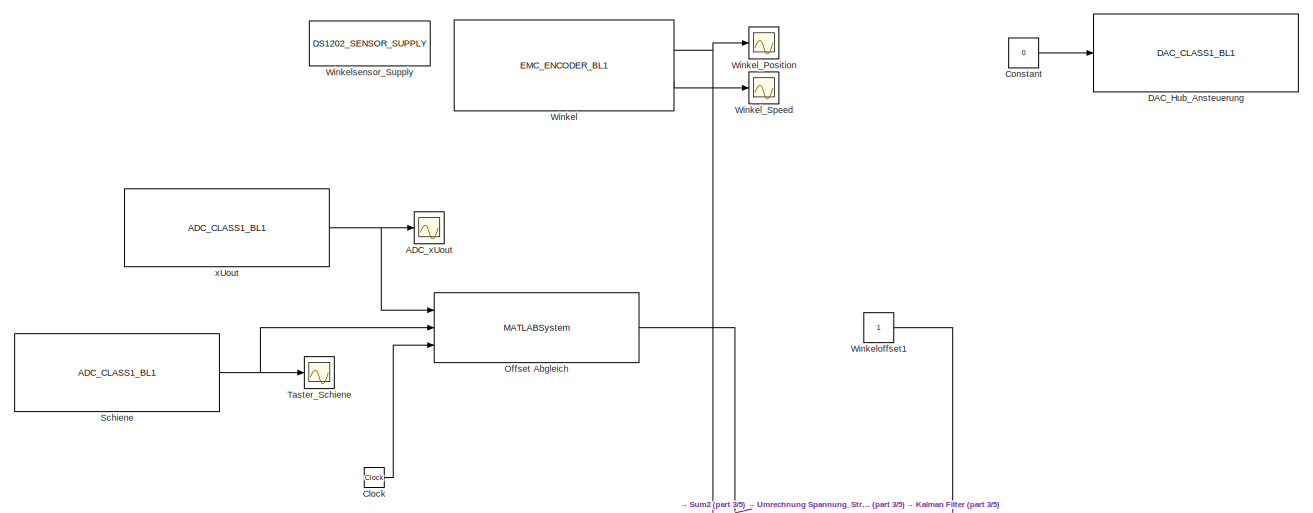
[diagram: root canvas - part 1/5, top center region]
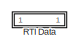
[diagram: root canvas - part 2/5, top left region]
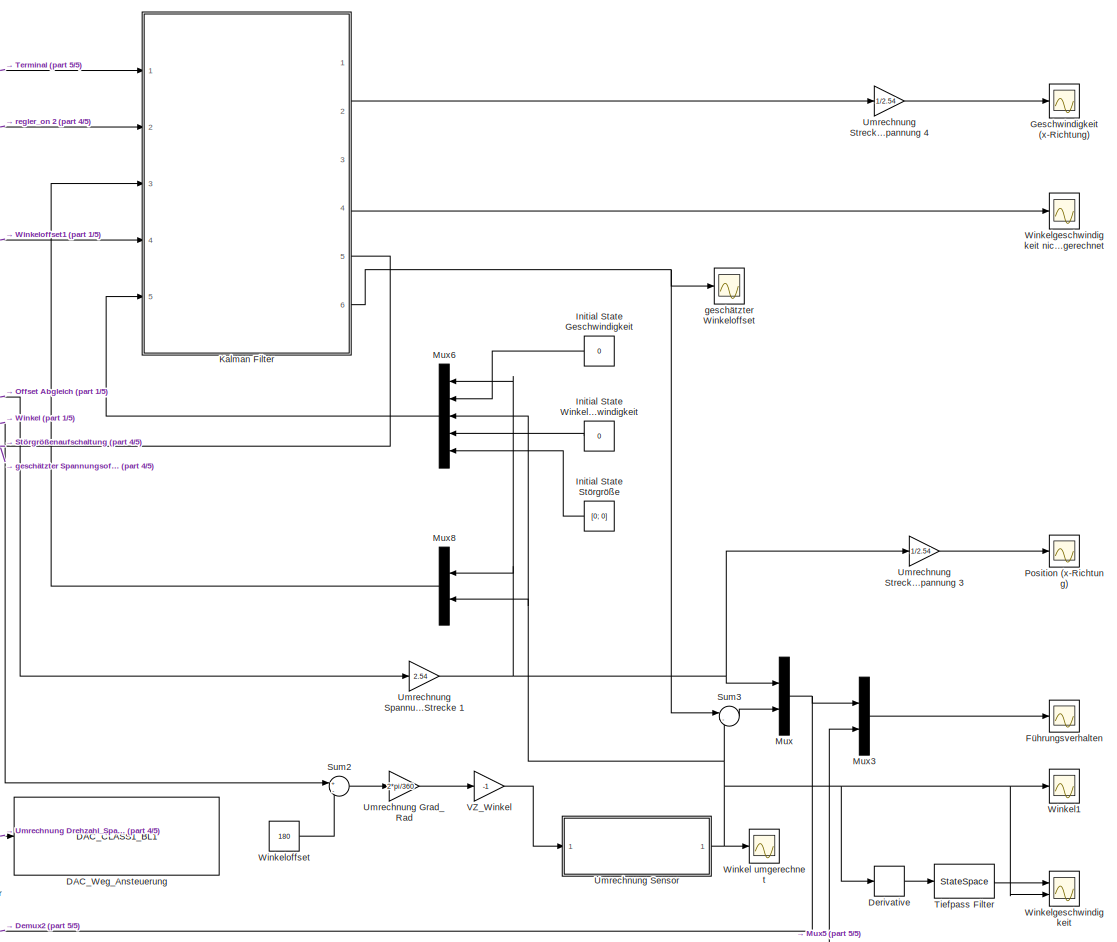
[diagram: root canvas - part 3/5, middle right region]
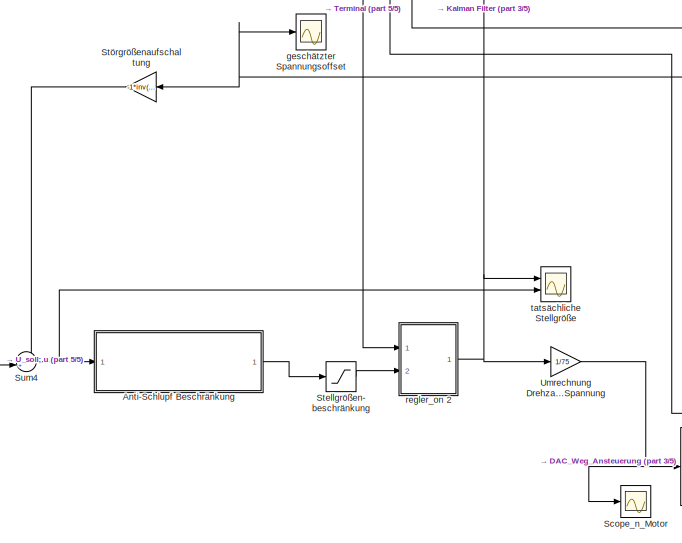
[diagram: root canvas - part 4/5, bottom center region]
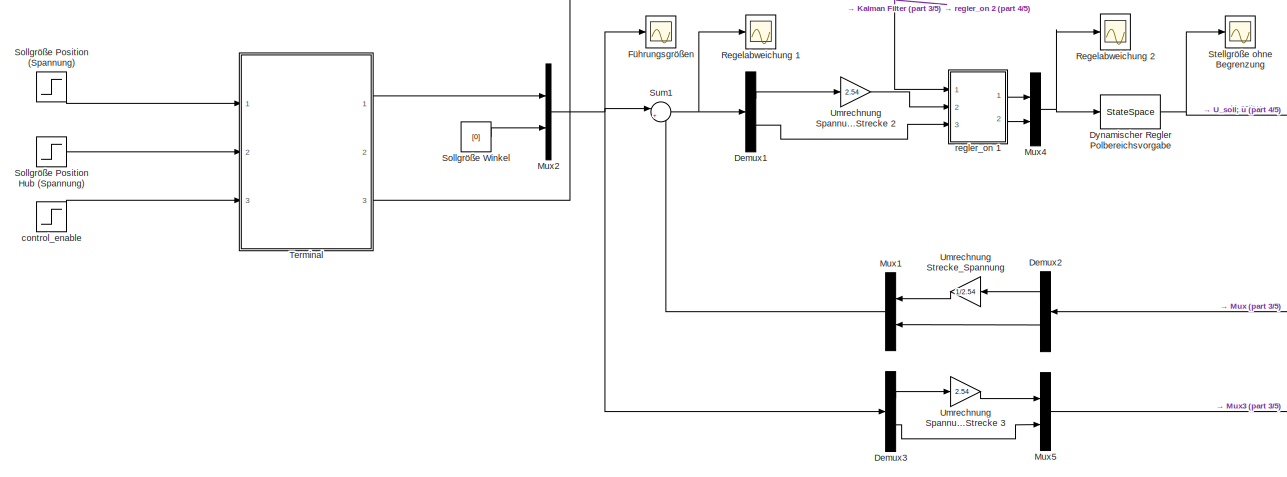
[diagram: root canvas - part 5/5, bottom left region]
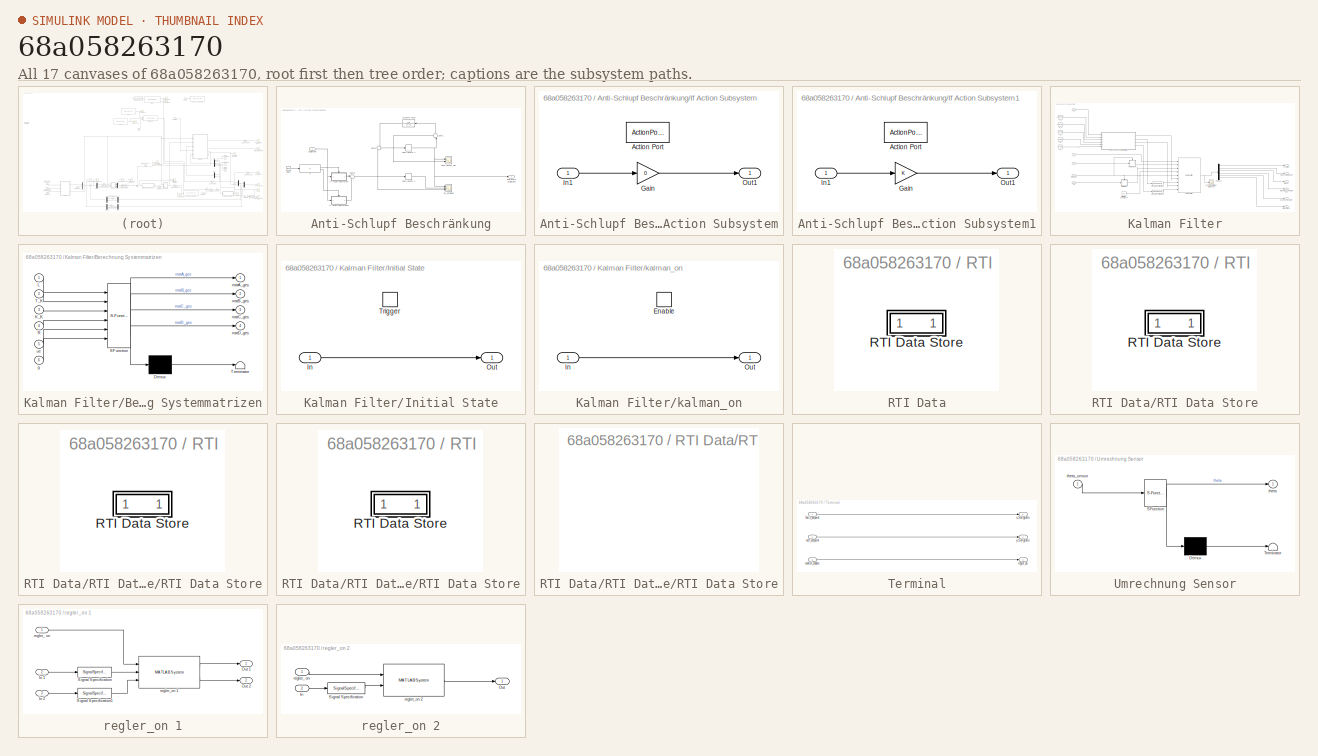
[diagram: thumbnail index - all 17 canvases of the model, root first then tree order]
MODEL slx_68a058263170
KIND model
CONFIG AbsTol = auto
CONFIG EnableMultiTasking = off
CONFIG FixedStep = 0.001
CONFIG MaxStep = auto
CONFIG MinStep = auto
CONFIG PostLoadFcn = , if any(exist('dsrtsu_mdlpostloadfcn', 'file') == [2, 3, 6]), try dsrtsu_mdlpostloadfcn('Execute', bdroot); catch fprintf('Error in PostLoadFcn (dsrtsu_mdlpostloadfcn) for model "%s":\n %s\n', bdroot, lasterr); end, end, \n
CONFIG RelTol = 1e-3
CONFIG SampleTimeConstraint = Unconstrained
CONFIG Solver = ode1
CONFIG SolverName = ode1
CONFIG StartTime = 0.0
CONFIG StopTime = Inf
BLOCK [Scope] ADC_xUout
  NumInputPorts = 1
  Ports = [1]
  ScopeSpecificationString = C++SS(StrPVP('SaveName','ScopeData4'),StrPVP('LimitDataPoints','on'),StrPVP('DataFormat','Array'),StrPVP('Decimation','1'),StrPVP('BlockParamSampleInput','off'))
BLOCK [SubSystem] Anti-Schlupf Beschränkung
  Ports = [1, 1]
  RequestExecContextInheritance = off
  Variant = off
BLOCK [Clock] Anti-Schlupf Beschränkung/Clock
BLOCK [If] Anti-Schlupf Beschränkung/If
  IfExpression = u1 < 0.01
  Ports = [1, 2]
BLOCK [SubSystem] Anti-Schlupf Beschränkung/If Action Subsystem
  Ports = [1, 1, 0, 0, 0, 0, 0, 1]
  RequestExecContextInheritance = off
  TreatAsAtomicUnit = on
  Variant = off
BLOCK [ActionPort] Anti-Schlupf Beschränkung/If Action Subsystem/Action Port
BLOCK [Gain] Anti-Schlupf Beschränkung/If Action Subsystem/Gain
  Gain = 0
  OutDataTypeStr = Inherit: Inherit via internal rule
  ParamDataTypeStr = Inherit: Inherit via internal rule
  SaturateOnIntegerOverflow = off
BLOCK [Inport] Anti-Schlupf Beschränkung/If Action Subsystem/In1
  IconDisplay = Port number
BLOCK [Outport] Anti-Schlupf Beschränkung/If Action Subsystem/Out1
  IconDisplay = Port number
BLOCK [SubSystem] Anti-Schlupf Beschränkung/If Action Subsystem1
  Ports = [1, 1, 0, 0, 0, 0, 0, 1]
  RequestExecContextInheritance = off
  TreatAsAtomicUnit = on
  Variant = off
BLOCK [ActionPort] Anti-Schlupf Beschränkung/If Action Subsystem1/Action Port
BLOCK [Gain] Anti-Schlupf Beschränkung/If Action Subsystem1/Gain
  OutDataTypeStr = Inherit: Inherit via internal rule
  ParamDataTypeStr = Inherit: Inherit via internal rule
  SaturateOnIntegerOverflow = off
BLOCK [Inport] Anti-Schlupf Beschränkung/If Action Subsystem1/In1
  IconDisplay = Port number
BLOCK [Outport] Anti-Schlupf Beschränkung/If Action Subsystem1/Out1
  IconDisplay = Port number
BLOCK [Scope] Anti-Schlupf Beschränkung/RL_Vergleich
  NumInputPorts = 3
  Ports = [3]
  ScopeSpecificationString = Simulink.scopes.TimeScopeBlockCfg('CurrentConfiguration', extmgr.ConfigurationSet(extmgr.Configuration('Core','General UI',true),extmgr.Configuration('Core','Source UI',true),extmgr.Configuration('Sources','WiredSimulink',true,'DataLoggingVariableName','ScopeData2'),extmgr.Configuration('Visuals','Time Domain',true,'SerializedDisplays',{struct('MinYLimReal','-510.99726','MaxYLimReal','97.01303','Y...<+1490ch>
BLOCK [RateLimiter] Anti-Schlupf Beschränkung/Rate Limiter 1
  FallingSlewLimit = -9.57
  RisingSlewLimit = 9.57
  SampleTimeMode = inherited
BLOCK [RateLimiter] Anti-Schlupf Beschränkung/Rate Limiter 2
  FallingSlewLimit = -9.57
  RisingSlewLimit = 9.57
  SampleTimeMode = inherited
BLOCK [Scope] Anti-Schlupf Beschränkung/Rate Limiter_diff
  NumInputPorts = 2
  Ports = [2]
  ScopeSpecificationString = Simulink.scopes.TimeScopeBlockCfg('CurrentConfiguration', extmgr.ConfigurationSet(extmgr.Configuration('Core','General UI',true),extmgr.Configuration('Core','Source UI',true),extmgr.Configuration('Sources','WiredSimulink',true,'DataLoggingVariableName','ScopeData1'),extmgr.Configuration('Visuals','Time Domain',true,'SerializedDisplays',{struct('MinYLimReal','-24.99839','MaxYLimReal','29.44327','YL...<+1434ch>
BLOCK [Inport] Anti-Schlupf Beschränkung/Stellgröße
  IconDisplay = Port number
BLOCK [Sum] Anti-Schlupf Beschränkung/Sum1
  IconShape = round
  InputSameDT = off
  Inputs = -+|
  OutDataTypeStr = Inherit: Inherit via internal rule
  Ports = [2, 1]
  SaturateOnIntegerOverflow = off
BLOCK [Sum] Anti-Schlupf Beschränkung/Sum2
  IconShape = round
  InputSameDT = off
  Inputs = +|+
  OutDataTypeStr = Inherit: Inherit via internal rule
  Ports = [2, 1]
  SaturateOnIntegerOverflow = off
BLOCK [Sum] Anti-Schlupf Beschränkung/Sum8
  IconShape = round
  InputSameDT = off
  Inputs = |++
  OutDataTypeStr = Inherit: Inherit via internal rule
  Ports = [2, 1]
  SaturateOnIntegerOverflow = off
BLOCK [TransferFcn] Anti-Schlupf Beschränkung/Transfer Fcn2
  Denominator = [2 1]
  Numerator = [2]
BLOCK [Outport] Anti-Schlupf Beschränkung/begrenzte Stellgröße
  IconDisplay = Port number
BLOCK [Clock] Clock
BLOCK [Constant] Constant
  Value = 0
BLOCK [Reference] DAC_Hub_Ansteuerung  REF=rti1202lib_dac_class1/DAC_CLASS1_BL1
  Ports = [1]
  SourceBlock = rti1202lib_dac_class1/DAC_CLASS1_BL1
  SourceType = RTI
BLOCK [Reference] DAC_Weg_Ansteuerung  REF=rti1202lib_dac_class1/DAC_CLASS1_BL1
  Ports = [1]
  SourceBlock = rti1202lib_dac_class1/DAC_CLASS1_BL1
  SourceType = RTI
BLOCK [Demux] Demux1
  DisplayOption = bar
  Outputs = 2
  Ports = [1, 2]
BLOCK [Demux] Demux2
  DisplayOption = bar
  Outputs = 2
  Ports = [1, 2]
BLOCK [Demux] Demux3
  DisplayOption = bar
  Outputs = 2
  Ports = [1, 2]
BLOCK [Derivative] Derivative
  Commented = on
BLOCK [StateSpace] Dynamischer Regler Polbereichsvorgabe
  A = A_D
  B = -B_D
  C = -C_D
  D = D_D
  Ports = [1, 1]
  X0 = 0
BLOCK [Scope] Führungsgrößen
  NumInputPorts = 1
  Ports = [1]
  ScopeSpecificationString = C++SS(StrPVP('SaveName','ScopeData2'),StrPVP('LimitDataPoints','on'),StrPVP('DataFormat','Array'),StrPVP('Decimation','1'),StrPVP('BlockParamSampleInput','off'))
BLOCK [Scope] Führungsverhalten
  NumInputPorts = 1
  Ports = [1]
  ScopeSpecificationString = C++SS(StrPVP('SaveName','ScopeData3'),StrPVP('LimitDataPoints','on'),StrPVP('DataFormat','Array'),StrPVP('Decimation','1'),StrPVP('BlockParamSampleInput','off'))
BLOCK [Scope] Geschwindigkeit (x-Richtung)
  NumInputPorts = 1
  Ports = [1]
  ScopeSpecificationString = C++SS(StrPVP('SaveName','ScopeData4'),StrPVP('LimitDataPoints','on'),StrPVP('DataFormat','Array'),StrPVP('Decimation','1'),StrPVP('BlockParamSampleInput','off'))
BLOCK [Constant] Initial State Geschwindigkeit
  Value = 0
  VectorParams1D = off
BLOCK [Constant] Initial State Störgröße
  Value = [0; 0]
  VectorParams1D = off
BLOCK [Constant] Initial State Winkelgeschwindigkeit
  Value = 0
  VectorParams1D = off
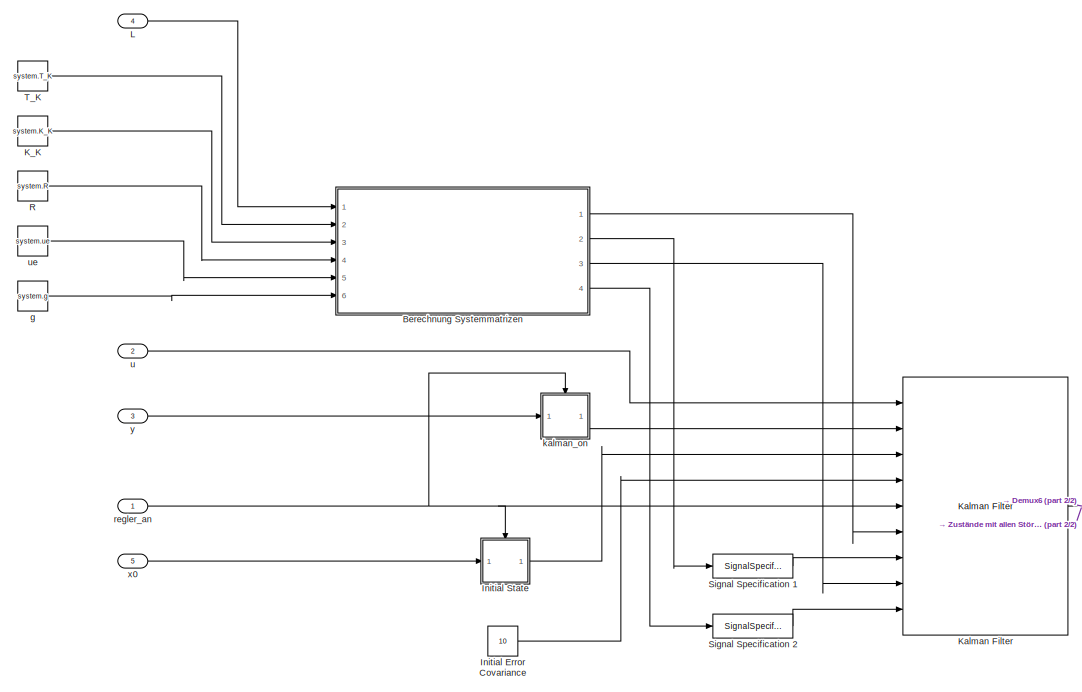
[diagram: Kalman Filter - part 1/2, left side, full height]
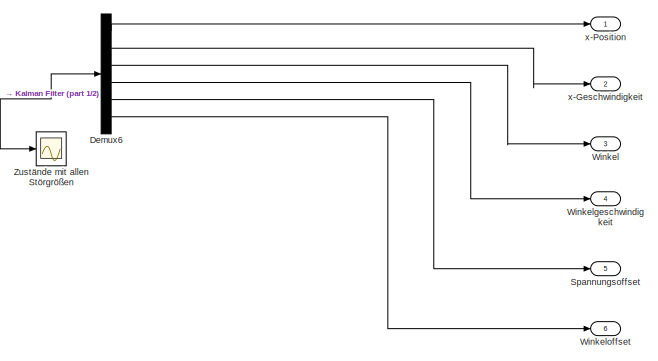
[diagram: Kalman Filter - part 2/2, bottom right region]
BLOCK [SubSystem] Kalman Filter
  Ports = [5, 6]
  RequestExecContextInheritance = off
  Variant = off
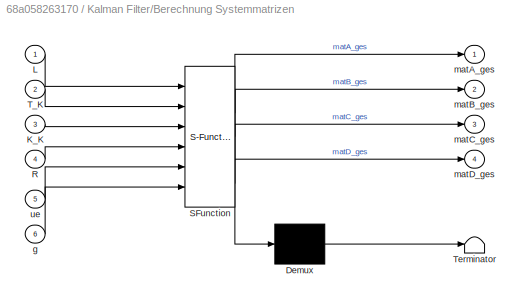
BLOCK [SubSystem] Kalman Filter/Berechnung Systemmatrizen
  ErrorFcn = Stateflow.Translate.translate
  PermitHierarchicalResolution = ExplicitOnly
  Ports = [6, 4]
  RequestExecContextInheritance = off
  SFBlockType = MATLAB Function
  TreatAsAtomicUnit = on
  Variant = off
BLOCK [Demux] Kalman Filter/Berechnung Systemmatrizen/ Demux 
  Outputs = 1
  Ports = [1, 1]
BLOCK [S-Function] Kalman Filter/Berechnung Systemmatrizen/ SFunction 
  EnableBusSupport = on
  FunctionName = sf_sfun
  PortCounts = [6 5]
  Ports = [6, 5]
  SFcnIsStateOwnerBlock = off
  SFunctionDeploymentMode = off
  Tag = Stateflow S-Function test_regler_polbvg_aktoren_sensoren_ansprechen 3
BLOCK [Terminator] Kalman Filter/Berechnung Systemmatrizen/ Terminator 
BLOCK [Inport] Kalman Filter/Berechnung Systemmatrizen/K_K
  IconDisplay = Port number
  Port = 3
BLOCK [Inport] Kalman Filter/Berechnung Systemmatrizen/L
  IconDisplay = Port number
BLOCK [Inport] Kalman Filter/Berechnung Systemmatrizen/R
  IconDisplay = Port number
  Port = 4
BLOCK [Inport] Kalman Filter/Berechnung Systemmatrizen/T_K
  IconDisplay = Port number
  Port = 2
BLOCK [Inport] Kalman Filter/Berechnung Systemmatrizen/g
  IconDisplay = Port number
  Port = 6
BLOCK [Outport] Kalman Filter/Berechnung Systemmatrizen/matA_ges
  IconDisplay = Port number
BLOCK [Outport] Kalman Filter/Berechnung Systemmatrizen/matB_ges
  IconDisplay = Port number
  Port = 2
BLOCK [Outport] Kalman Filter/Berechnung Systemmatrizen/matC_ges
  IconDisplay = Port number
  Port = 3
BLOCK [Outport] Kalman Filter/Berechnung Systemmatrizen/matD_ges
  IconDisplay = Port number
  Port = 4
BLOCK [Inport] Kalman Filter/Berechnung Systemmatrizen/ue
  IconDisplay = Port number
  Port = 5
BLOCK [Demux] Kalman Filter/Demux6
  DisplayOption = bar
  Outputs = 6
  Ports = [1, 6]
BLOCK [Constant] Kalman Filter/Initial Error Covariance
  Value = 10
BLOCK [SubSystem] Kalman Filter/Initial State
  Ports = [1, 1, 0, 1]
  RequestExecContextInheritance = off
  TreatAsAtomicUnit = on
  Variant = off
BLOCK [Inport] Kalman Filter/Initial State/In
  IconDisplay = Port number
BLOCK [Outport] Kalman Filter/Initial State/Out
  IconDisplay = Port number
BLOCK [TriggerPort] Kalman Filter/Initial State/Trigger
  Ports = []
  StatesWhenEnabling = held
  VariantControl = Variant
BLOCK [Constant] Kalman Filter/K_K
  Value = system.K_K
BLOCK [Reference] Kalman Filter/Kalman Filter  REF=ctrlSharedLib/Kalman Filter
  Ports = [9, 1]
  SourceBlock = ctrlSharedLib/Kalman Filter
  SourceType = ctrlKalmanFilter
BLOCK [Inport] Kalman Filter/L
  IconDisplay = Port number
  Port = 4
BLOCK [Constant] Kalman Filter/R
  Value = system.R
BLOCK [SignalSpecification] Kalman Filter/Signal Specification 1
  Dimensions = [6 1]
BLOCK [SignalSpecification] Kalman Filter/Signal Specification 2
  Dimensions = [2 1]
BLOCK [Outport] Kalman Filter/Spannungsoffset
  IconDisplay = Port number
  Port = 5
BLOCK [Constant] Kalman Filter/T_K
  Value = system.T_K
BLOCK [Outport] Kalman Filter/Winkel
  IconDisplay = Port number
  Port = 3
BLOCK [Outport] Kalman Filter/Winkelgeschwindigkeit
  IconDisplay = Port number
  Port = 4
BLOCK [Outport] Kalman Filter/Winkeloffset
  IconDisplay = Port number
  Port = 6
BLOCK [Scope] Kalman Filter/Zustände mit allen Störgrößen
  NumInputPorts = 1
  Ports = [1]
  ScopeSpecificationString = Simulink.scopes.TimeScopeBlockCfg('CurrentConfiguration', extmgr.ConfigurationSet(extmgr.Configuration('Core','General UI',true),extmgr.Configuration('Core','Source UI',true),extmgr.Configuration('Sources','WiredSimulink',true,'DataLoggingVariableName','ScopeData1'),extmgr.Configuration('Visuals','Time Domain',true,'SerializedDisplays',{struct('MinYLimReal','-0.84313','MaxYLimReal','3.02828','YLab...<+1537ch>
BLOCK [Constant] Kalman Filter/g
  Value = system.g
BLOCK [SubSystem] Kalman Filter/kalman_on
  Ports = [1, 1, 1]
  RequestExecContextInheritance = off
  TreatAsAtomicUnit = on
  Variant = off
BLOCK [EnablePort] Kalman Filter/kalman_on/Enable
  Ports = []
BLOCK [Inport] Kalman Filter/kalman_on/In
  IconDisplay = Port number
BLOCK [Outport] Kalman Filter/kalman_on/Out
  IconDisplay = Port number
BLOCK [Inport] Kalman Filter/regler_an
  IconDisplay = Port number
BLOCK [Inport] Kalman Filter/u
  IconDisplay = Port number
  Port = 2
BLOCK [Constant] Kalman Filter/ue
  Value = system.ue
BLOCK [Outport] Kalman Filter/x-Geschwindigkeit
  IconDisplay = Port number
  Port = 2
BLOCK [Outport] Kalman Filter/x-Position
  IconDisplay = Port number
BLOCK [Inport] Kalman Filter/x0
  IconDisplay = Port number
  Port = 5
BLOCK [Inport] Kalman Filter/y
  IconDisplay = Port number
  Port = 3
BLOCK [Mux] Mux
  DisplayOption = bar
  Inputs = 2
  Ports = [2, 1]
BLOCK [Mux] Mux1
  DisplayOption = bar
  Inputs = 2
  Ports = [2, 1]
BLOCK [Mux] Mux2
  DisplayOption = bar
  Inputs = 2
  Ports = [2, 1]
BLOCK [Mux] Mux3
  DisplayOption = bar
  Inputs = 2
  Ports = [2, 1]
BLOCK [Mux] Mux4
  DisplayOption = bar
  Inputs = 2
  Ports = [2, 1]
BLOCK [Mux] Mux5
  DisplayOption = bar
  Inputs = 2
  Ports = [2, 1]
BLOCK [Mux] Mux6
  DisplayOption = bar
  Inputs = 5
  Ports = [5, 1]
BLOCK [Mux] Mux8
  DisplayOption = bar
  Inputs = 2
  Ports = [2, 1]
BLOCK [MATLABSystem] Offset Abgleich
  MaskDisplay = disp('offset_abgleich');\nport_label('input',1,'input');\nport_label('input',2,'taster');\nport_label('input',3,'clock');\nport_label('output',1,'output');
  MaskType = offset_abgleich
  Ports = [3, 1]
  SimulateUsing = Code generation
  System = offset_abgleich
BLOCK [Scope] Position (x-Richtung)
  NumInputPorts = 1
  Ports = [1]
  ScopeSpecificationString = C++SS(StrPVP('SaveName','ScopeData5'),StrPVP('LimitDataPoints','on'),StrPVP('DataFormat','Array'),StrPVP('Decimation','1'),StrPVP('BlockParamSampleInput','off'))
BLOCK [SubSystem] RTI Data
  CopyFcn = if exist('rtidc'), try,  rtidc('DataHostBlockClbCopy', gcbh); catch, disp(['Warning: ''CopyFcn'' for RTI Data block failed: ' lasterr]); end, end,
  DeleteFcn = if exist('rtidc'), try,  rtidc('DataHostBlockClbDelete', gcbh); catch, disp(['Warning: ''DeleteFcn'' for RTI Data block failed: ' lasterr]); end, end,
  LoadFcn = if exist('rtidc'), try,  rtidc('DataHostBlockClbLoad', gcbh); catch, disp(['Warning: ''LoadFcn'' for RTI Data block failed: ' lasterr]); end, end,
  ModelCloseFcn = if exist('rtidc'), try,  rtidc('DataHostBlockClbModelClose', gcbh); catch, disp(['Warning: ''ModelCloseFcn'' for RTI Data block failed: ' lasterr]); end, end,
  NameChangeFcn = if exist('rtidc'), try,  rtidc('DataHostBlockClbNameChange', gcbh); catch, disp(['Warning: ''NameChangeFcn'' for RTI Data block failed: ' lasterr]); end, end,
  Ports = []
  PostSaveFcn = if exist('rtidc'), try,  rtidc('DataHostBlockClbPostSave', gcbh); catch, disp(['Warning: ''PostSaveFcn'' for RTI Data block failed: ' lasterr]); end, end,
  PreSaveFcn = if exist('rtidc'), try,  rtidc('DataHostBlockClbPreSave', gcbh); catch, disp(['Warning: ''PreSaveFcn'' for RTI Data block failed: ' lasterr]); end, end,
  RequestExecContextInheritance = off
  Tag = struct('RTIDataServer',struct('RTIDataServerVs','2','RTIModelDescription','struct(''main'',''aktoren_sensoren_ansprechen'',''sub'','''',''isMp'',0)'))
  Variant = off
BLOCK [SubSystem] RTI Data/RTI Data Store
  Ports = []
  RequestExecContextInheritance = off
  Tag = struct('private',struct('version',struct('dsVer',uint32(2),'dsVerCreation',uint32(2),'RTI',struct('ver','7.7','type','RTI1202')),'access',struct('type','Model','isPerm',1,'created',['24-Nov-2020 10:16:32'],'modified',['02-Dec-2020 16:46:45'],'location','')),'public',struct('main',struct('data',[]),'sub',struct('name',{{'aktoren_sensoren_ansprechen'}},'data',{{struct('TH',struct('thTaskInfo',struct...<+904ch>
  Variant = off
BLOCK [SubSystem] RTI Data/RTI Data Store/RTI Data Store
  Ports = []
  RequestExecContextInheritance = off
  Variant = off
BLOCK [SubSystem] RTI Data/RTI Data Store/RTI Data Store/RTI Data Store
  Ports = []
  RequestExecContextInheritance = off
  Variant = off
BLOCK [SubSystem] RTI Data/RTI Data Store/RTI Data Store/RTI Data Store/RTI Data Store
  Ports = []
  RequestExecContextInheritance = off
  Variant = off
BLOCK [Scope] Regelabweichung 1
  NumInputPorts = 1
  Ports = [1]
  ScopeSpecificationString = C++SS(StrPVP('SaveName','ScopeData6'),StrPVP('LimitDataPoints','on'),StrPVP('DataFormat','Array'),StrPVP('Decimation','1'),StrPVP('BlockParamSampleInput','off'))
BLOCK [Scope] Regelabweichung 2
  NumInputPorts = 1
  Ports = [1]
  ScopeSpecificationString = C++SS(StrPVP('SaveName','ScopeData7'),StrPVP('LimitDataPoints','on'),StrPVP('DataFormat','Array'),StrPVP('Decimation','1'),StrPVP('BlockParamSampleInput','off'))
BLOCK [Reference] Schiene  REF=rti1202lib_adc_class1/ADC_CLASS1_BL1
  Ports = [0, 1]
  SourceBlock = rti1202lib_adc_class1/ADC_CLASS1_BL1
  SourceType = RTI
BLOCK [Scope] Scope_n_Motor
  NumInputPorts = 1
  Ports = [1]
  ScopeSpecificationString = C++SS(StrPVP('SaveName','ScopeData3'),StrPVP('LimitDataPoints','on'),StrPVP('DataFormat','Array'),StrPVP('Decimation','1'),StrPVP('BlockParamSampleInput','off'),StrPVP('SaveName','ScopeData1'))
BLOCK [Step] Sollgröße Position (Spannung)
  SampleTime = 0
  Time = 2
BLOCK [Step] Sollgröße Position Hub (Spannung)
  After = 0.5
  SampleTime = 0
  Time = 2
BLOCK [Constant] Sollgröße Winkel
  Value = [0]
  VectorParams1D = off
BLOCK [Scope] Stellgröße ohne Begrenzung
  NumInputPorts = 1
  Ports = [1]
  ScopeSpecificationString = C++SS(StrPVP('SaveName','ScopeData8'),StrPVP('LimitDataPoints','on'),StrPVP('DataFormat','Array'),StrPVP('Decimation','1'),StrPVP('BlockParamSampleInput','off'))
BLOCK [Saturate] Stellgrößen- beschränkung
  InputPortMap = u0
  LowerLimit = -75
  Ports = [1, 1]
  UpperLimit = 75
BLOCK [Gain] Störgrößenaufschaltung
  Gain = -1*inv(matB'*matB)*matB'*matE
  Multiplication = Matrix(K*u)
  OutDataTypeStr = Inherit: Inherit via internal rule
  ParamDataTypeStr = Inherit: Inherit via internal rule
  SaturateOnIntegerOverflow = off
BLOCK [Sum] Sum1
  IconShape = round
  InputSameDT = off
  Inputs = |+-
  OutDataTypeStr = Inherit: Inherit via internal rule
  Ports = [2, 1]
  SaturateOnIntegerOverflow = off
BLOCK [Sum] Sum2
  IconShape = round
  InputSameDT = off
  Inputs = +|-
  OutDataTypeStr = Inherit: Inherit via internal rule
  Ports = [2, 1]
  SaturateOnIntegerOverflow = off
BLOCK [Sum] Sum3
  IconShape = round
  InputSameDT = off
  Inputs = |-+
  OutDataTypeStr = Inherit: Inherit via internal rule
  Ports = [2, 1]
  SaturateOnIntegerOverflow = off
BLOCK [Sum] Sum4
  IconShape = round
  InputSameDT = off
  Inputs = ++|
  OutDataTypeStr = Inherit: Inherit via internal rule
  Ports = [2, 1]
  SaturateOnIntegerOverflow = off
BLOCK [Scope] Taster_Schiene
  NumInputPorts = 1
  Ports = [1]
  ScopeSpecificationString = C++SS(StrPVP('SaveName','ScopeData'),StrPVP('SaveName','ScopeData2'),StrPVP('LimitDataPoints','on'),StrPVP('DataFormat','Array'),StrPVP('Decimation','1'),StrPVP('BlockParamSampleInput','off'),StrPVP('SaveName','ScopeData1'))
BLOCK [SubSystem] Terminal
  Ports = [3, 3]
  RequestExecContextInheritance = off
  Variant = off
BLOCK [Inport] Terminal/control_enable
  IconDisplay = Port number
  Port = 3
BLOCK [Inport] Terminal/horiz_setpoint
  IconDisplay = Port number
BLOCK [Outport] Terminal/regler_an
  IconDisplay = Port number
  Port = 3
BLOCK [Inport] Terminal/vert_setpoint
  IconDisplay = Port number
  Port = 2
BLOCK [Outport] Terminal/x-Sollgröße
  IconDisplay = Port number
BLOCK [Outport] Terminal/y-Sollgröße
  IconDisplay = Port number
  Port = 2
BLOCK [StateSpace] Tiefpass Filter
  A = A_b_angle
  B = B_b_angle
  C = C_b_angle
  Commented = on
  D = D_b_angle
  Ports = [1, 1]
  X0 = 0
BLOCK [Gain] Umrechnung Drehzahl_Spannung
  Gain = 1/75
  OutDataTypeStr = Inherit: Inherit via internal rule
  ParamDataTypeStr = Inherit: Inherit via internal rule
  SaturateOnIntegerOverflow = off
BLOCK [Gain] Umrechnung Grad_Rad
  Gain = 2*pi/360
  OutDataTypeStr = Inherit: Inherit via internal rule
  ParamDataTypeStr = Inherit: Inherit via internal rule
  SaturateOnIntegerOverflow = off
BLOCK [SubSystem] Umrechnung Sensor
  ErrorFcn = Stateflow.Translate.translate
  PermitHierarchicalResolution = ExplicitOnly
  Ports = [1, 1]
  RequestExecContextInheritance = off
  SFBlockType = MATLAB Function
  TreatAsAtomicUnit = on
  Variant = off
BLOCK [Demux] Umrechnung Sensor/ Demux 
  Outputs = 1
  Ports = [1, 1]
BLOCK [S-Function] Umrechnung Sensor/ SFunction 
  EnableBusSupport = on
  FunctionName = sf_sfun
  PortCounts = [1 2]
  Ports = [1, 2]
  SFcnIsStateOwnerBlock = off
  SFunctionDeploymentMode = off
  Tag = Stateflow S-Function test_regler_polbvg_aktoren_sensoren_ansprechen 2
BLOCK [Terminator] Umrechnung Sensor/ Terminator 
BLOCK [Outport] Umrechnung Sensor/theta
  IconDisplay = Port number
BLOCK [Inport] Umrechnung Sensor/theta_sensor
  IconDisplay = Port number
BLOCK [Gain] Umrechnung Spannung_Strecke 1
  Gain = 2.54
  OutDataTypeStr = Inherit: Inherit via internal rule
  ParamDataTypeStr = Inherit: Inherit via internal rule
  SaturateOnIntegerOverflow = off
BLOCK [Gain] Umrechnung Spannung_Strecke 2
  Gain = 2.54
  OutDataTypeStr = Inherit: Inherit via internal rule
  ParamDataTypeStr = Inherit: Inherit via internal rule
  SaturateOnIntegerOverflow = off
BLOCK [Gain] Umrechnung Spannung_Strecke 3
  Gain = 2.54
  OutDataTypeStr = Inherit: Inherit via internal rule
  ParamDataTypeStr = Inherit: Inherit via internal rule
  SaturateOnIntegerOverflow = off
BLOCK [Gain] Umrechnung Strecke_Spannung
  Gain = 1/2.54
  OutDataTypeStr = Inherit: Inherit via internal rule
  ParamDataTypeStr = Inherit: Inherit via internal rule
  SaturateOnIntegerOverflow = off
BLOCK [Gain] Umrechnung Strecke_Spannung 3
  Gain = 1/2.54
  OutDataTypeStr = Inherit: Inherit via internal rule
  ParamDataTypeStr = Inherit: Inherit via internal rule
  SaturateOnIntegerOverflow = off
BLOCK [Gain] Umrechnung Strecke_Spannung 4
  Gain = 1/2.54
  OutDataTypeStr = Inherit: Inherit via internal rule
  ParamDataTypeStr = Inherit: Inherit via internal rule
  SaturateOnIntegerOverflow = off
BLOCK [Gain] VZ_Winkel
  Gain = -1
  OutDataTypeStr = Inherit: Inherit via internal rule
  ParamDataTypeStr = Inherit: Inherit via internal rule
  SaturateOnIntegerOverflow = off
BLOCK [Reference] Winkel  REF=rtiemclib/EMC_ENCODER_BL1
  Ports = [0, 2]
  SourceBlock = rtiemclib/EMC_ENCODER_BL1
  SourceType = RTI
BLOCK [Scope] Winkel umgerechnet
  NumInputPorts = 1
  Ports = [1]
  ScopeSpecificationString = C++SS(StrPVP('SaveName','ScopeData9'),StrPVP('LimitDataPoints','on'),StrPVP('DataFormat','Array'),StrPVP('Decimation','1'),StrPVP('BlockParamSampleInput','off'))
BLOCK [Scope] Winkel1
  NumInputPorts = 1
  Ports = [1]
  ScopeSpecificationString = C++SS(StrPVP('SaveName','ScopeData10'),StrPVP('LimitDataPoints','on'),StrPVP('DataFormat','Array'),StrPVP('Decimation','1'),StrPVP('BlockParamSampleInput','off'))
BLOCK [Scope] Winkel_Position
  NumInputPorts = 1
  Ports = [1]
  ScopeSpecificationString = C++SS(StrPVP('SaveName','ScopeData'),StrPVP('LimitDataPoints','on'),StrPVP('DataFormat','Array'),StrPVP('Decimation','1'),StrPVP('BlockParamSampleInput','off'))
BLOCK [Scope] Winkel_Speed
  NumInputPorts = 1
  Ports = [1]
  ScopeSpecificationString = C++SS(StrPVP('SaveName','ScopeData'),StrPVP('SaveName','ScopeData1'),StrPVP('LimitDataPoints','on'),StrPVP('DataFormat','Array'),StrPVP('Decimation','1'),StrPVP('BlockParamSampleInput','off'))
BLOCK [Scope] Winkelgeschwindigkeit
  Commented = on
  NumInputPorts = 2
  Ports = [2]
  ScopeSpecificationString = C++SS(StrPVP('SaveName','ScopeData11'),StrPVP('LimitDataPoints','on'),StrPVP('DataFormat','Array'),StrPVP('Decimation','1'),StrPVP('BlockParamSampleInput','off'))
BLOCK [Scope] Winkelgeschwindigkeit nicht umgerechnet
  NumInputPorts = 1
  Ports = [1]
  ScopeSpecificationString = C++SS(StrPVP('SaveName','ScopeData12'),StrPVP('LimitDataPoints','on'),StrPVP('DataFormat','Array'),StrPVP('Decimation','1'),StrPVP('BlockParamSampleInput','off'))
BLOCK [Constant] Winkeloffset
  Value = 180
BLOCK [Constant] Winkeloffset1
BLOCK [Reference] Winkelsensor_Supply  REF=rti1202lib_base/DS1202_SENSOR_SUPPLY
  Ports = []
  SourceBlock = rti1202lib_base/DS1202_SENSOR_SUPPLY
  SourceType = RTI
BLOCK [Step] control_enable
  SampleTime = 0
  Time = 2
BLOCK [Scope] geschätzter Spannungsoffset
  NumInputPorts = 1
  Ports = [1]
  ScopeSpecificationString = C++SS(StrPVP('SaveName','ScopeData13'),StrPVP('LimitDataPoints','on'),StrPVP('DataFormat','Array'),StrPVP('Decimation','1'),StrPVP('BlockParamSampleInput','off'))
BLOCK [Scope] geschätzter Winkeloffset
  NumInputPorts = 1
  Ports = [1]
  ScopeSpecificationString = C++SS(StrPVP('SaveName','ScopeData14'),StrPVP('LimitDataPoints','on'),StrPVP('DataFormat','Array'),StrPVP('Decimation','1'),StrPVP('BlockParamSampleInput','off'))
BLOCK [SubSystem] regler_on 1
  Ports = [3, 2]
  RequestExecContextInheritance = off
  Variant = off
BLOCK [Inport] regler_on 1/In 1
  IconDisplay = Port number
  Port = 2
BLOCK [Inport] regler_on 1/In 2
  IconDisplay = Port number
  Port = 3
BLOCK [Outport] regler_on 1/Out 1
  IconDisplay = Port number
BLOCK [Outport] regler_on 1/Out 2
  IconDisplay = Port number
  Port = 2
BLOCK [SignalSpecification] regler_on 1/Signal Specification
  Dimensions = 1
BLOCK [SignalSpecification] regler_on 1/Signal Specification1
  Dimensions = 1
BLOCK [Inport] regler_on 1/regler_ on
  IconDisplay = Port number
BLOCK [MATLABSystem] regler_on 1/regler_on 1
  MaskDisplay = disp('regler_switch_2');\nport_label('input',1,'regler_on');\nport_label('input',2,'input1');\nport_label('input',3,'input2');\nport_label('output',1,'y1');\nport_label('output',2,'y2');
  MaskType = regler_switch_2
  Ports = [3, 2]
  SimulateUsing = Code generation
  System = regler_switch_2
BLOCK [SubSystem] regler_on 2
  Ports = [2, 1]
  RequestExecContextInheritance = off
  Variant = off
BLOCK [Inport] regler_on 2/In
  IconDisplay = Port number
  Port = 2
BLOCK [Outport] regler_on 2/Out
  IconDisplay = Port number
BLOCK [SignalSpecification] regler_on 2/Signal Specification
  Dimensions = 1
BLOCK [Inport] regler_on 2/regler_ on
  IconDisplay = Port number
BLOCK [MATLABSystem] regler_on 2/regler_on 2
  MaskDisplay = disp('regler_switch_1');\nport_label('input',1,'regler_on');\nport_label('input',2,'input');\nport_label('output',1,'y');
  MaskType = regler_switch_1
  Ports = [2, 1]
  SimulateUsing = Code generation
  System = regler_switch_1
BLOCK [Scope] tatsächliche Stellgröße
  NumInputPorts = 2
  Ports = [2]
  ScopeSpecificationString = C++SS(StrPVP('SaveName','ScopeData16'),StrPVP('LimitDataPoints','on'),StrPVP('DataFormat','Array'),StrPVP('Decimation','1'),StrPVP('BlockParamSampleInput','off'))
BLOCK [Reference] xUout  REF=rti1202lib_adc_class1/ADC_CLASS1_BL1
  Ports = [0, 1]
  SourceBlock = rti1202lib_adc_class1/ADC_CLASS1_BL1
  SourceType = RTI
LINE Anti-Schlupf Beschränkung/Clock:1 -> Anti-Schlupf Beschränkung/If:1
LINE Anti-Schlupf Beschränkung/If Action Subsystem/Gain:1 -> Anti-Schlupf Beschränkung/If Action Subsystem/Out1:1
LINE Anti-Schlupf Beschränkung/If Action Subsystem/In1:1 -> Anti-Schlupf Beschränkung/If Action Subsystem/Gain:1
LINE Anti-Schlupf Beschränkung/If Action Subsystem1/Gain:1 -> Anti-Schlupf Beschränkung/If Action Subsystem1/Out1:1
LINE Anti-Schlupf Beschränkung/If Action Subsystem1/In1:1 -> Anti-Schlupf Beschränkung/If Action Subsystem1/Gain:1
LINE Anti-Schlupf Beschränkung/If Action Subsystem1:1 -> Anti-Schlupf Beschränkung/Sum8:2
LINE Anti-Schlupf Beschränkung/If Action Subsystem:1 -> Anti-Schlupf Beschränkung/Sum8:1
LINE Anti-Schlupf Beschränkung/If:1 -> Anti-Schlupf Beschränkung/If Action Subsystem:ifaction
LINE Anti-Schlupf Beschränkung/If:2 -> Anti-Schlupf Beschränkung/If Action Subsystem1:ifaction
LINE Anti-Schlupf Beschränkung/Rate Limiter 1:1 -> Anti-Schlupf Beschränkung/RL_Vergleich:2
NET Anti-Schlupf Beschränkung/Rate Limiter 2:1 -> Anti-Schlupf Beschränkung/RL_Vergleich:1, Anti-Schlupf Beschränkung/Rate Limiter_diff:1, Anti-Schlupf Beschränkung/Sum1:2, Anti-Schlupf Beschränkung/begrenzte Stellgröße:1
NET Anti-Schlupf Beschränkung/Stellgröße:1 -> Anti-Schlupf Beschränkung/If Action Subsystem1:1, Anti-Schlupf Beschränkung/If Action Subsystem:1
LINE Anti-Schlupf Beschränkung/Sum1:1 -> Anti-Schlupf Beschränkung/Transfer Fcn2:1
NET Anti-Schlupf Beschränkung/Sum2:1 -> Anti-Schlupf Beschränkung/Rate Limiter 2:1, Anti-Schlupf Beschränkung/Rate Limiter_diff:2, Anti-Schlupf Beschränkung/Sum1:1
NET Anti-Schlupf Beschränkung/Sum8:1 -> Anti-Schlupf Beschränkung/RL_Vergleich:3, Anti-Schlupf Beschränkung/Rate Limiter 1:1, Anti-Schlupf Beschränkung/Sum2:2
LINE Anti-Schlupf Beschränkung/Transfer Fcn2:1 -> Anti-Schlupf Beschränkung/Sum2:1
LINE Anti-Schlupf Beschränkung:1 -> Stellgrößen- beschränkung:1
LINE Clock:1 -> Offset Abgleich:3
LINE Constant:1 -> DAC_Hub_Ansteuerung:1
LINE Demux1:1 -> Umrechnung Spannung_Strecke 2:1
LINE Demux1:2 -> regler_on 1:3
LINE Demux2:1 -> Umrechnung Strecke_Spannung:1
LINE Demux2:2 -> Mux1:2
LINE Demux3:1 -> Umrechnung Spannung_Strecke 3:1
LINE Demux3:2 -> Mux5:2
LINE Derivative:1 -> Tiefpass Filter:1
NET Dynamischer Regler Polbereichsvorgabe:1 -> Stellgröße ohne Begrenzung:1, Sum4:2
LINE Initial State Geschwindigkeit:1 -> Mux6:2
LINE Initial State Störgröße:1 -> Mux6:5
LINE Initial State Winkelgeschwindigkeit:1 -> Mux6:4
LINE Kalman Filter/Berechnung Systemmatrizen:1 -> Kalman Filter/Kalman Filter:6
LINE Kalman Filter/Berechnung Systemmatrizen:2 -> Kalman Filter/Signal Specification 1:1
LINE Kalman Filter/Berechnung Systemmatrizen:3 -> Kalman Filter/Kalman Filter:8
LINE Kalman Filter/Berechnung Systemmatrizen:4 -> Kalman Filter/Signal Specification 2:1
LINE Kalman Filter/Demux6:1 -> Kalman Filter/x-Position:1
LINE Kalman Filter/Demux6:2 -> Kalman Filter/x-Geschwindigkeit:1
LINE Kalman Filter/Demux6:3 -> Kalman Filter/Winkel:1
LINE Kalman Filter/Demux6:4 -> Kalman Filter/Winkelgeschwindigkeit:1
LINE Kalman Filter/Demux6:5 -> Kalman Filter/Spannungsoffset:1
LINE Kalman Filter/Demux6:6 -> Kalman Filter/Winkeloffset:1
LINE Kalman Filter/Initial Error Covariance:1 -> Kalman Filter/Kalman Filter:4
LINE Kalman Filter/Initial State/In:1 -> Kalman Filter/Initial State/Out:1
LINE Kalman Filter/Initial State:1 -> Kalman Filter/Kalman Filter:3
LINE Kalman Filter/K_K:1 -> Kalman Filter/Berechnung Systemmatrizen:3
NET Kalman Filter/Kalman Filter:1 -> Kalman Filter/Demux6:1, Kalman Filter/Zustände mit allen Störgrößen:1
LINE Kalman Filter/L:1 -> Kalman Filter/Berechnung Systemmatrizen:1
LINE Kalman Filter/R:1 -> Kalman Filter/Berechnung Systemmatrizen:4
LINE Kalman Filter/Signal Specification 1:1 -> Kalman Filter/Kalman Filter:7
LINE Kalman Filter/Signal Specification 2:1 -> Kalman Filter/Kalman Filter:9
LINE Kalman Filter/T_K:1 -> Kalman Filter/Berechnung Systemmatrizen:2
LINE Kalman Filter/g:1 -> Kalman Filter/Berechnung Systemmatrizen:6
LINE Kalman Filter/kalman_on/In:1 -> Kalman Filter/kalman_on/Out:1
LINE Kalman Filter/kalman_on:1 -> Kalman Filter/Kalman Filter:2
NET Kalman Filter/regler_an:1 -> Kalman Filter/Initial State:trigger, Kalman Filter/Kalman Filter:5, Kalman Filter/kalman_on:enable
LINE Kalman Filter/u:1 -> Kalman Filter/Kalman Filter:1
LINE Kalman Filter/ue:1 -> Kalman Filter/Berechnung Systemmatrizen:5
LINE Kalman Filter/x0:1 -> Kalman Filter/Initial State:1
LINE Kalman Filter/y:1 -> Kalman Filter/kalman_on:1
LINE Kalman Filter:2 -> Umrechnung Strecke_Spannung 4:1
LINE Kalman Filter:4 -> Winkelgeschwindigkeit nicht umgerechnet:1
NET Kalman Filter:5 -> Störgrößenaufschaltung:1, geschätzter Spannungsoffset:1
NET Kalman Filter:6 -> Sum3:1, geschätzter Winkeloffset:1
LINE Mux1:1 -> Sum1:2
NET Mux2:1 -> Demux3:1, Führungsgrößen:1, Sum1:1
LINE Mux3:1 -> Führungsverhalten:1
NET Mux4:1 -> Dynamischer Regler Polbereichsvorgabe:1, Regelabweichung 2:1
LINE Mux5:1 -> Mux3:2
LINE Mux6:1 -> Kalman Filter:5
LINE Mux8:1 -> Kalman Filter:3
NET Mux:1 -> Demux2:1, Mux3:1
LINE Offset Abgleich:1 -> Umrechnung Spannung_Strecke 1:1
NET Schiene:1 -> Offset Abgleich:2, Taster_Schiene:1
LINE Sollgröße Position (Spannung):1 -> Terminal:1
LINE Sollgröße Position Hub (Spannung):1 -> Terminal:2
LINE Sollgröße Winkel:1 -> Mux2:2
LINE Stellgrößen- beschränkung:1 -> regler_on 2:2
LINE Störgrößenaufschaltung:1 -> Sum4:1
NET Sum1:1 -> Demux1:1, Regelabweichung 1:1
LINE Sum2:1 -> Umrechnung Grad_Rad:1
LINE Sum3:1 -> Mux:2
NET Sum4:1 -> Anti-Schlupf Beschränkung:1, tatsächliche Stellgröße:2
LINE Terminal/control_enable:1 -> Terminal/regler_an:1
LINE Terminal/horiz_setpoint:1 -> Terminal/x-Sollgröße:1
LINE Terminal/vert_setpoint:1 -> Terminal/y-Sollgröße:1
LINE Terminal:1 -> Mux2:1
NET Terminal:3 -> Kalman Filter:1, regler_on 1:1, regler_on 2:1
LINE Tiefpass Filter:1 -> Winkelgeschwindigkeit:1
NET Umrechnung Drehzahl_Spannung:1 -> DAC_Weg_Ansteuerung:1, Scope_n_Motor:1
LINE Umrechnung Grad_Rad:1 -> VZ_Winkel:1
NET Umrechnung Sensor:1 -> Derivative:1, Mux6:3, Mux8:2, Sum3:2, Winkel umgerechnet:1, Winkel1:1, Winkelgeschwindigkeit:2
NET Umrechnung Spannung_Strecke 1:1 -> Mux6:1, Mux8:1, Mux:1, Umrechnung Strecke_Spannung 3:1
LINE Umrechnung Spannung_Strecke 2:1 -> regler_on 1:2
LINE Umrechnung Spannung_Strecke 3:1 -> Mux5:1
LINE Umrechnung Strecke_Spannung 3:1 -> Position (x-Richtung):1
LINE Umrechnung Strecke_Spannung 4:1 -> Geschwindigkeit (x-Richtung):1
LINE Umrechnung Strecke_Spannung:1 -> Mux1:1
LINE VZ_Winkel:1 -> Umrechnung Sensor:1
NET Winkel:1 -> Sum2:1, Winkel_Position:1
LINE Winkel:2 -> Winkel_Speed:1
LINE Winkeloffset1:1 -> Kalman Filter:4
LINE Winkeloffset:1 -> Sum2:2
LINE control_enable:1 -> Terminal:3
LINE regler_on 1/In 1:1 -> regler_on 1/Signal Specification:1
LINE regler_on 1/In 2:1 -> regler_on 1/Signal Specification1:1
LINE regler_on 1/Signal Specification1:1 -> regler_on 1/regler_on 1:3
LINE regler_on 1/Signal Specification:1 -> regler_on 1/regler_on 1:2
LINE regler_on 1/regler_ on:1 -> regler_on 1/regler_on 1:1
LINE regler_on 1/regler_on 1:1 -> regler_on 1/Out 1:1
LINE regler_on 1/regler_on 1:2 -> regler_on 1/Out 2:1
LINE regler_on 1:1 -> Mux4:1
LINE regler_on 1:2 -> Mux4:2
LINE regler_on 2/In:1 -> regler_on 2/Signal Specification:1
LINE regler_on 2/Signal Specification:1 -> regler_on 2/regler_on 2:2
LINE regler_on 2/regler_ on:1 -> regler_on 2/regler_on 2:1
LINE regler_on 2/regler_on 2:1 -> regler_on 2/Out:1
NET regler_on 2:1 -> Kalman Filter:2, Umrechnung Drehzahl_Spannung:1, tatsächliche Stellgröße:1
NET xUout:1 -> ADC_xUout:1, Offset Abgleich:1
note: NET lines group one-source signal fan-out (src -> all destinations, sorted); 1:1 wires keep LINE
CHART Umrechnung Sensor states=1 transitions=1
  STATE_LABEL 'eML_blk_kernel()'
  STATE_LABEL 'SCRIPT:\nfunction theta  = sensorWinkel(theta_sensor)\n% berechnet aus dem gemessenen Winkel den tatsächlichen Winkel des\n% Lasthebers\n\n% l_verb: Länge des Verbindungsstücks\n% l_welle: Abstand der beiden Wellen\n\n% Parameter für die Winkelumrechnung\nl_verb = 0.109; % m %\nl_welle = 0.0575; % m %\n\ntheta = asin(sin(theta_sensor) * (l_verb / sqrt(l_welle^2 + l_verb^2 - (2 * l_verb * l_welle * cos(theta_s...<+13ch>'
CHART Kalman Filter/Berechnung Systemmatrizen states=1 transitions=1
  STATE_LABEL 'eML_blk_kernel()'
  STATE_LABEL 'SCRIPT:\nfunction [matA_ges, matB_ges, matC_ges, matD_ges]  = calcSysMatrixStoerGes(L, T_K, K_K, R, ue, g)\n\n% System ohne Störgrößen\nmatA = [0 1                           0                   0;\n        0 -(T_K^-1)            0                   0;\n        0 0                           0                   1;\n        0 (T_K*L)^-1    -g*(L^-1)   0];\n\nmatB = [0; (2*pi*R*K_K)/(ue*T_K); 0; (-2*pi*R*K_K)/...<+915ch>'
